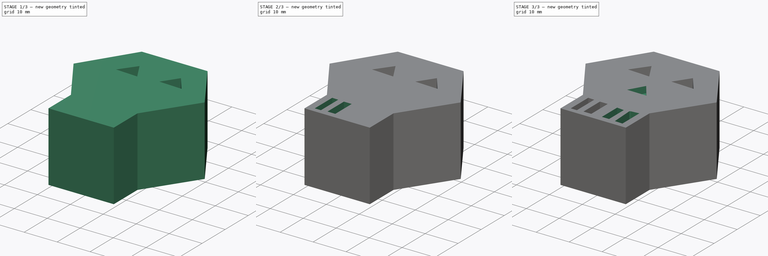
[diagram: build sequence overview — one tinted view per stage of 3, left to right]
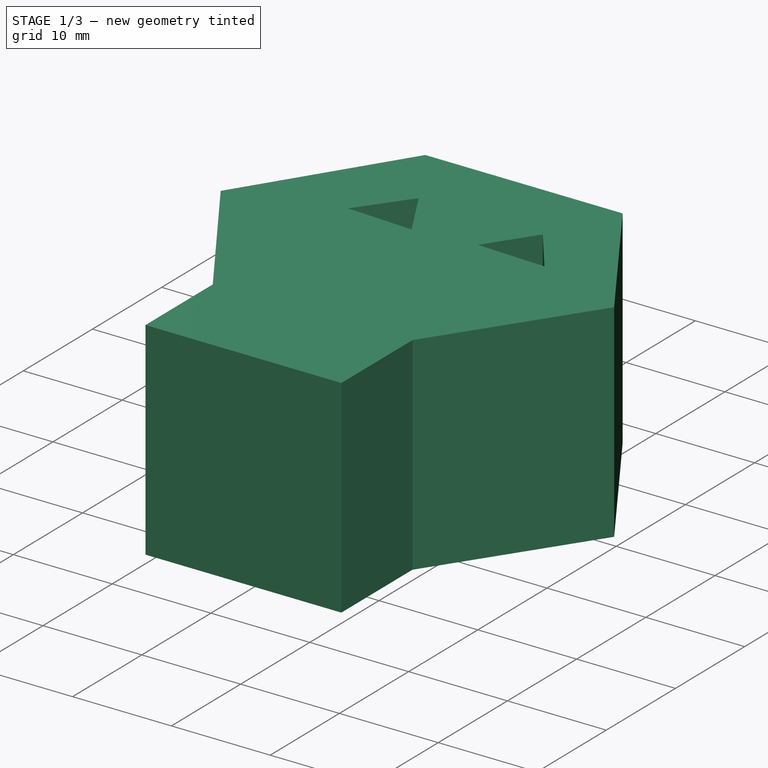
[diagram: stage 1 of 3 — iso view after this stage's code; geometry added in this stage tinted green]
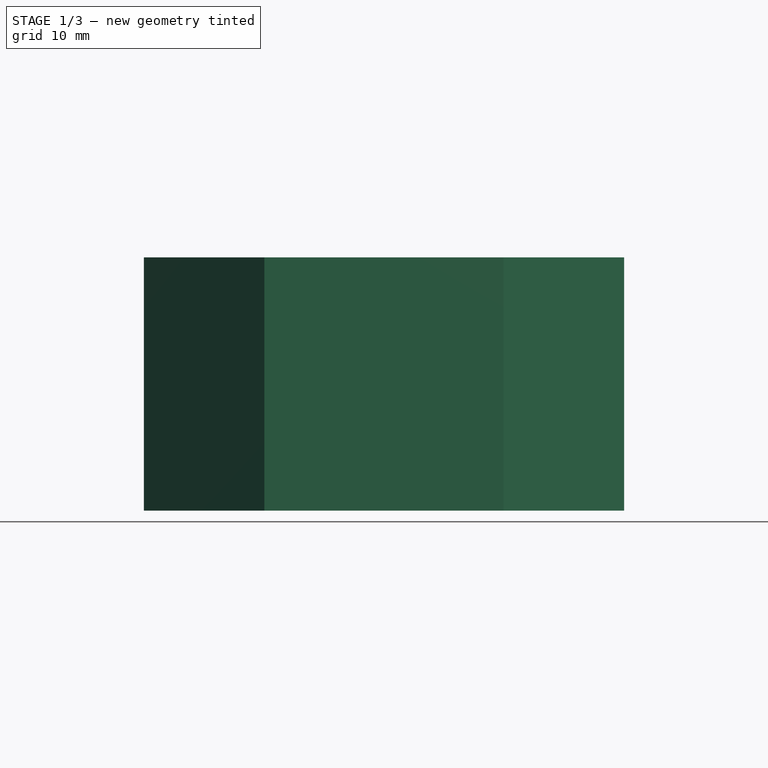
[diagram: stage 1 of 3 — front view after this stage's code; geometry added in this stage tinted green]
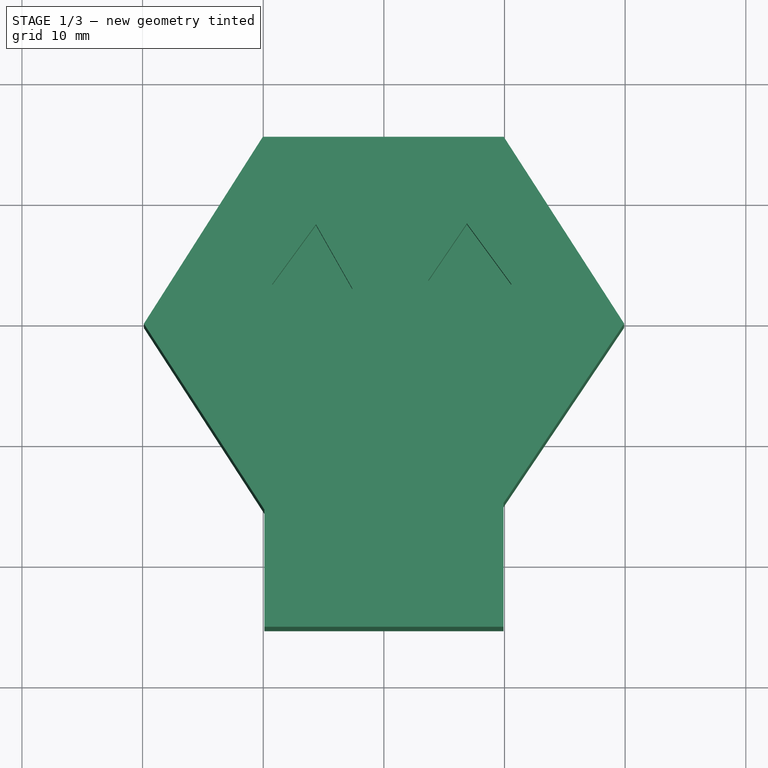
[diagram: stage 1 of 3 — top view after this stage's code; geometry added in this stage tinted green]
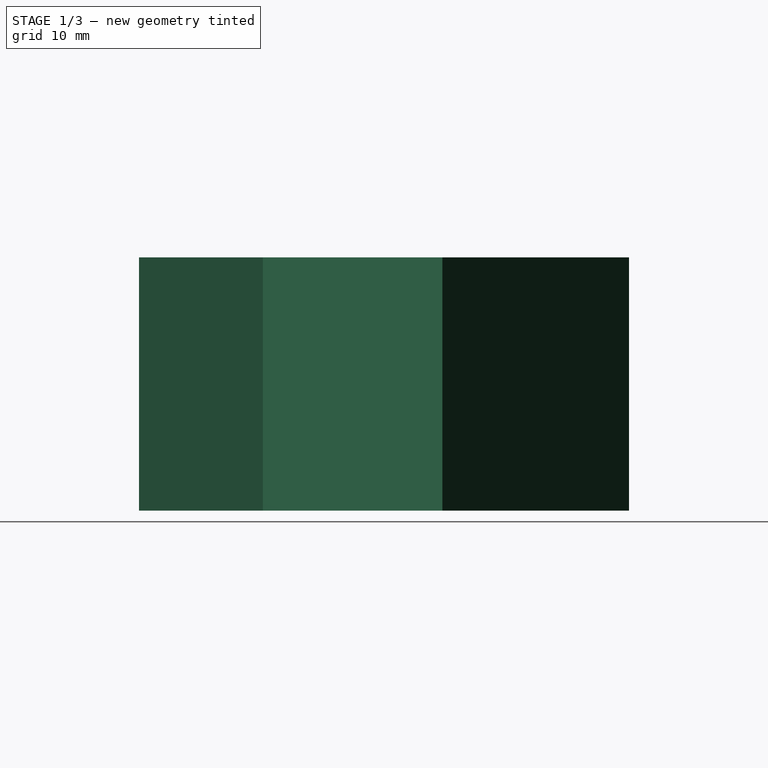
[diagram: stage 1 of 3 — right view after this stage's code; geometry added in this stage tinted green]
FCSTD DOCUMENT  (FreeCAD 0.21R33694 (Git))
Label: OJT1_T17R01.darth_vader
License: All rights reserved
LicenseURL: http://en.wikipedia.org/wiki/All_rights_reserved
objects: Sketcher::SketchObject×8, PartDesign::Pocket×7, PartDesign::Pad×1, PartDesign::Body×1
note: 25 computed .brp shape members not serialized (recipe doc carries the construction recipe); baked Part::Feature solids carry a one-line shape summary decoded from their .brp

FEATURE [Sketcher::SketchObject] Sketch
  FullyConstrained = false
  MapMode = 5
  Support = -> [XY_Plane]
  sketch-geometry (8):
    g0: LineSegment StartX=-10.0323 StartY=15.3043 StartZ=0 EndX=9.93668 EndY=15.3043 EndZ=0
    g1: LineSegment StartX=9.93668 StartY=15.3043 StartZ=0 EndX=19.9127 EndY=-0.173444 EndZ=0
    g2: LineSegment StartX=19.9127 StartY=-0.173444 StartZ=0 EndX=9.91949 EndY=-15.0522 EndZ=0
    g3: LineSegment StartX=9.91949 StartY=-15.0522 StartZ=0 EndX=9.91949 EndY=-25.3202 EndZ=0
    g4: LineSegment StartX=9.91949 StartY=-25.3202 StartZ=0 EndX=-9.90307 EndY=-25.3202 EndZ=0
    g5: LineSegment StartX=-9.90307 StartY=-25.3202 StartZ=0 EndX=-9.90307 EndY=-15.5968 EndZ=0
    g6: LineSegment StartX=-9.90307 StartY=-15.5968 StartZ=0 EndX=-19.8896 EndY=-0.189549 EndZ=0
    g7: LineSegment StartX=-19.8896 StartY=-0.189549 StartZ=0 EndX=-10.0323 EndY=15.3043 EndZ=0
  constraints (12):
    c: Horizontal(g0)
    c: Coincident(g0,g1)
    c: Coincident(g1,g2)
    c: Coincident(g2,g3)
    c: Vertical(g3)
    c: Coincident(g3,g4)
    c: Horizontal(g4)
    c: Coincident(g4,g5)
    c: Vertical(g5)
    c: Coincident(g5,g6)
    c: Coincident(g6,g7)
    c: Coincident(g7,g0)
FEATURE [PartDesign::Pad] Pad
  Direction = (0,0,1)
  Length = 21
  Length2 = 10
  Profile = -> Sketch
  ReferenceAxis = -> Sketch [N_Axis]
  Refine = true
  Type = 0
FEATURE [Sketcher::SketchObject] Sketch001
  FullyConstrained = false
  MapMode = 5
  Placement = pos=(0,0,21) rot=(0,0,1;0rad)
  Support = -> [Pad]
  sketch-geometry (3):
    g0: LineSegment StartX=-5.62805 StartY=8.04647 StartZ=0 EndX=-9.27889 EndY=3.05699 EndZ=0
    g1: LineSegment StartX=-9.27889 StartY=3.05699 StartZ=0 EndX=-2.58568 EndY=2.69191 EndZ=0
    g2: LineSegment StartX=-2.58568 StartY=2.69191 StartZ=0 EndX=-5.62805 EndY=8.04647 EndZ=0
  constraints (3):
    c: Coincident(g0,g1)
    c: Coincident(g1,g2)
    c: Coincident(g2,g0)
FEATURE [PartDesign::Pocket] Pocket
  BaseFeature = -> Pad
  Direction = (0,0,-1)
  Length = 5
  Length2 = 5
  Profile = -> Sketch001
  ReferenceAxis = -> Sketch001 [N_Axis]
  Refine = true
  Type = 0
FEATURE [Sketcher::SketchObject] Sketch002
  FullyConstrained = false
  MapMode = 5
  Placement = pos=(0,0,21) rot=(0,0,1;0rad)
  Support = -> [Pocket]
  sketch-geometry (3):
    g0: LineSegment StartX=6.8832 StartY=8.12005 StartZ=0 EndX=3.65829 EndY=3.37396 EndZ=0
    g1: LineSegment StartX=3.65829 StartY=3.37396 StartZ=0 EndX=10.5949 EndY=3.06972 EndZ=0
    g2: LineSegment StartX=10.5949 StartY=3.06972 StartZ=0 EndX=6.8832 EndY=8.12005 EndZ=0
  constraints (3):
    c: Coincident(g0,g1)
    c: Coincident(g1,g2)
    c: Coincident(g2,g0)
FEATURE [PartDesign::Pocket] Pocket001
  BaseFeature = -> Pocket
  Direction = (0,0,-1)
  Length = 5
  Length2 = 5
  Profile = -> Sketch002
  ReferenceAxis = -> Sketch002 [N_Axis]
  Refine = true
  Type = 0
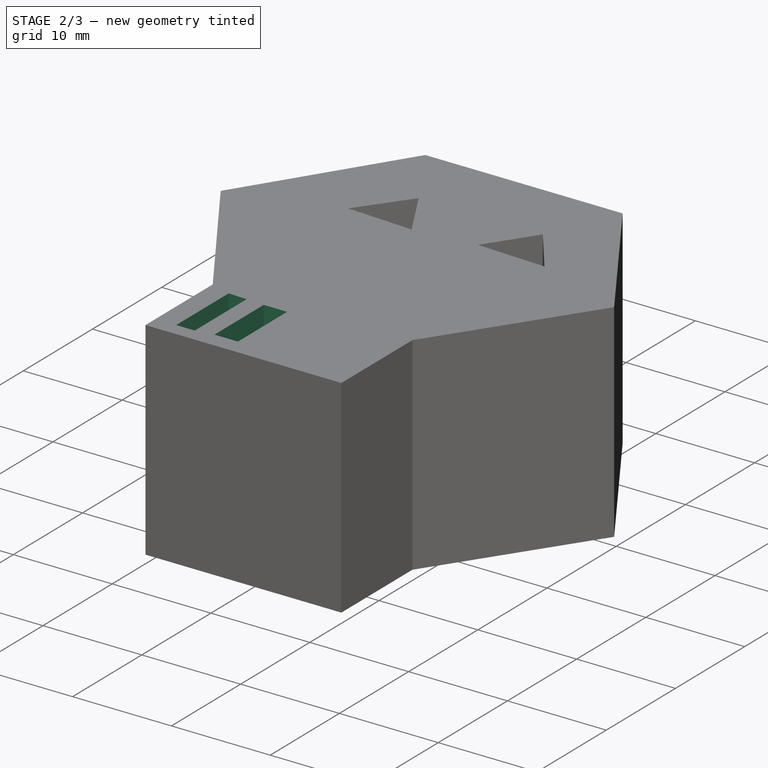
[diagram: stage 2 of 3 — iso view after this stage's code; geometry added in this stage tinted green]
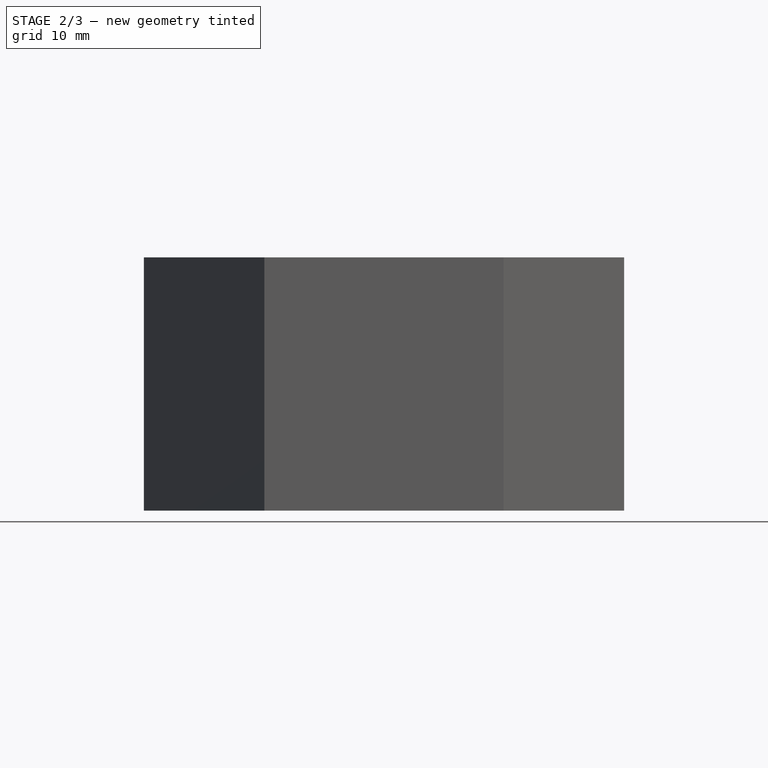
[diagram: stage 2 of 3 — front view after this stage's code; geometry added in this stage tinted green]
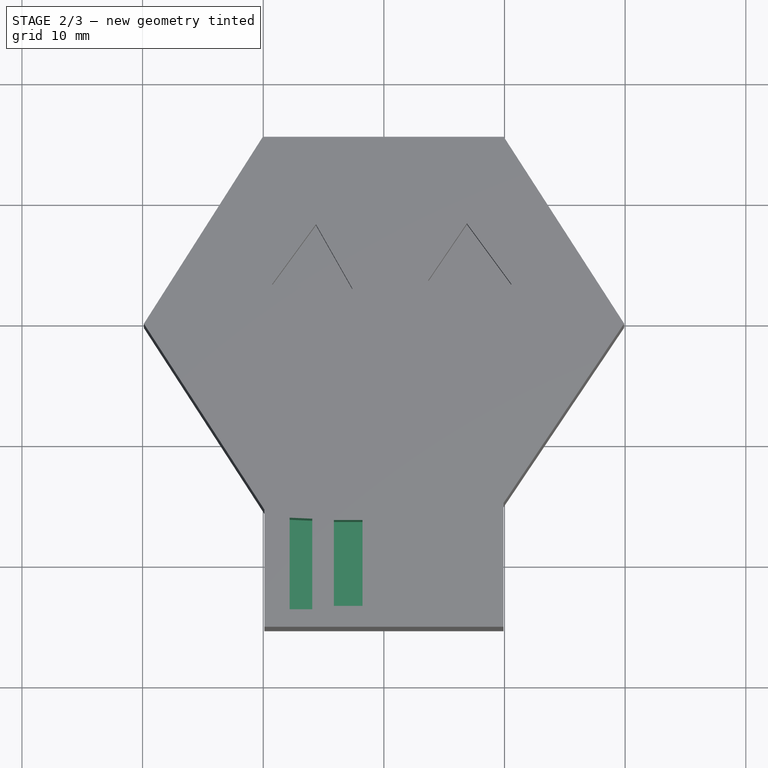
[diagram: stage 2 of 3 — top view after this stage's code; geometry added in this stage tinted green]
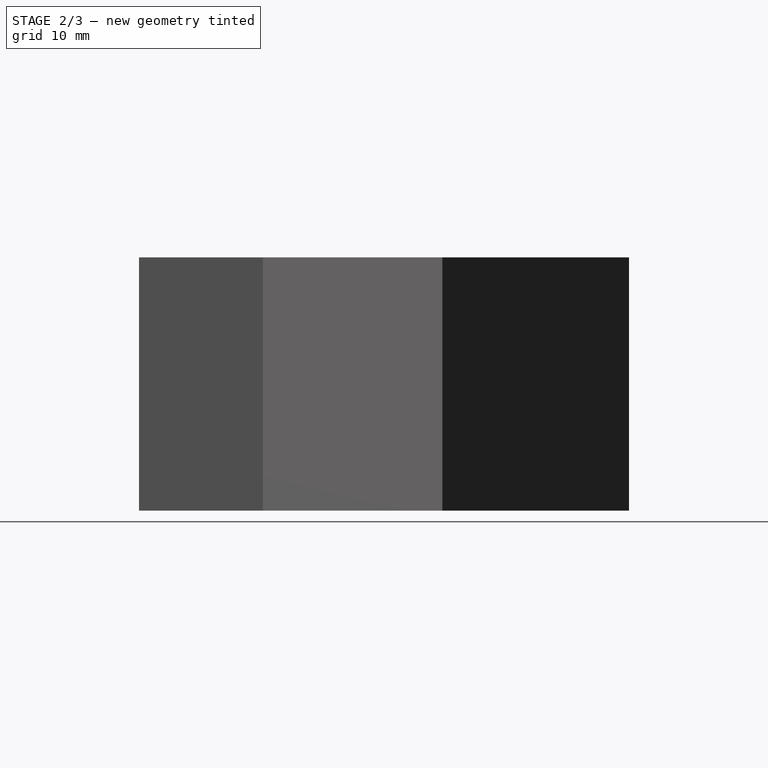
[diagram: stage 2 of 3 — right view after this stage's code; geometry added in this stage tinted green]
FEATURE [Sketcher::SketchObject] Sketch003
  FullyConstrained = false
  MapMode = 5
  Placement = pos=(0,0,21) rot=(0,0,1;0rad)
  Support = -> [Pocket001]
  sketch-geometry (4):
    g0: LineSegment StartX=-7.81432 StartY=-23.8601 StartZ=0 EndX=-5.93811 EndY=-23.8601 EndZ=0
    g1: LineSegment StartX=-5.93811 StartY=-23.8601 StartZ=0 EndX=-5.93811 EndY=-16.3553 EndZ=0
    g2: LineSegment StartX=-5.93811 StartY=-16.3553 StartZ=0 EndX=-7.81432 EndY=-16.2737 EndZ=0
    g3: LineSegment StartX=-7.81432 StartY=-16.2737 StartZ=0 EndX=-7.81432 EndY=-23.8601 EndZ=0
  constraints (7):
    c: Horizontal(g0)
    c: Coincident(g0,g1)
    c: Vertical(g1)
    c: Coincident(g1,g2)
    c: Coincident(g2,g3)
    c: Coincident(g3,g0)
    c: Vertical(g3)
FEATURE [PartDesign::Pocket] Pocket002
  BaseFeature = -> Pocket001
  Direction = (0,0,-1)
  Length = 10
  Length2 = 5
  Profile = -> Sketch003
  ReferenceAxis = -> Sketch003 [N_Axis]
  Refine = true
  Type = 0
FEATURE [Sketcher::SketchObject] Sketch004
  FullyConstrained = false
  MapMode = 5
  Placement = pos=(0,0,21) rot=(0,0,1;0rad)
  Support = -> [Pocket002]
  sketch-geometry (4):
    g0: LineSegment StartX=-4.13921 StartY=-16.4607 StartZ=0 EndX=-1.76617 EndY=-16.4607 EndZ=0
    g1: LineSegment StartX=-1.76617 StartY=-16.4607 StartZ=0 EndX=-1.76617 EndY=-23.5798 EndZ=0
    g2: LineSegment StartX=-1.76617 StartY=-23.5798 StartZ=0 EndX=-4.13921 EndY=-23.5798 EndZ=0
    g3: LineSegment StartX=-4.13921 StartY=-23.5798 StartZ=0 EndX=-4.13921 EndY=-16.4607 EndZ=0
  constraints (8):
    c: Horizontal(g0)
    c: Coincident(g0,g1)
    c: Vertical(g1)
    c: Coincident(g1,g2)
    c: Horizontal(g2)
    c: Coincident(g2,g3)
    c: Coincident(g3,g0)
    c: Vertical(g3)
FEATURE [PartDesign::Pocket] Pocket003
  BaseFeature = -> Pocket002
  Direction = (0,0,-1)
  Length = 10
  Length2 = 5
  Profile = -> Sketch004
  ReferenceAxis = -> Sketch004 [N_Axis]
  Refine = true
  Type = 0
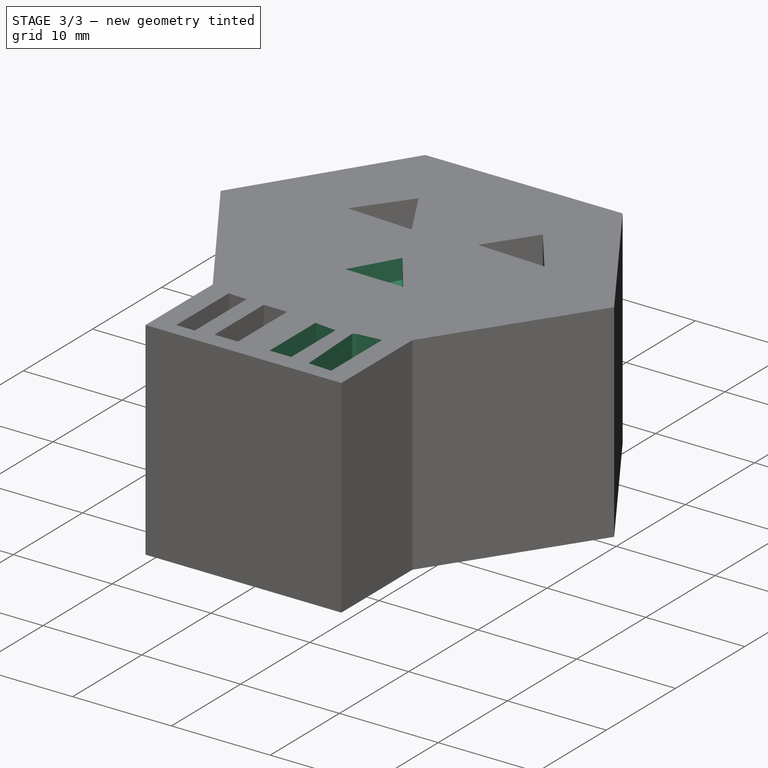
[diagram: stage 3 of 3 — iso view after this stage's code; geometry added in this stage tinted green]
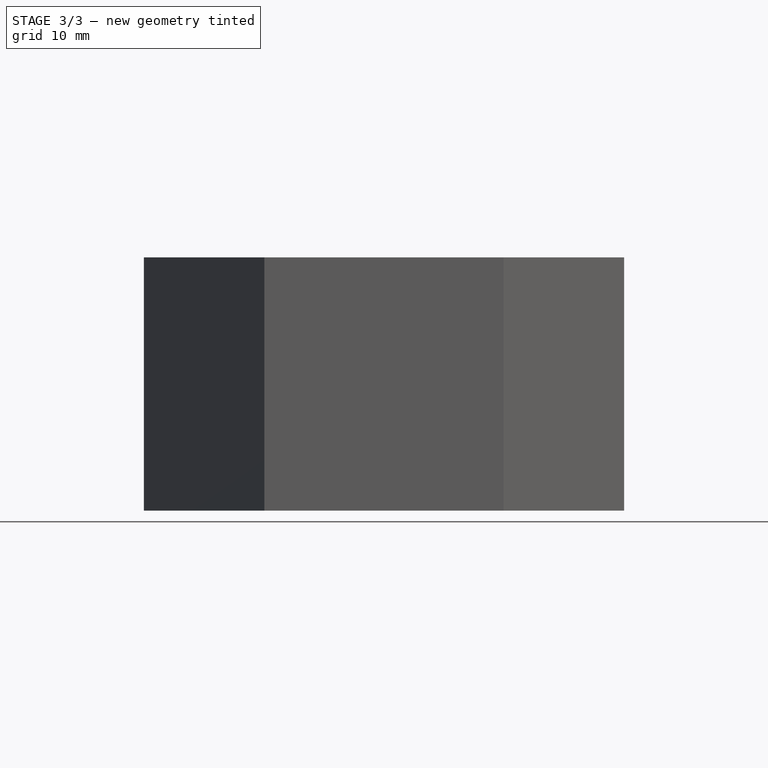
[diagram: stage 3 of 3 — front view after this stage's code; geometry added in this stage tinted green]
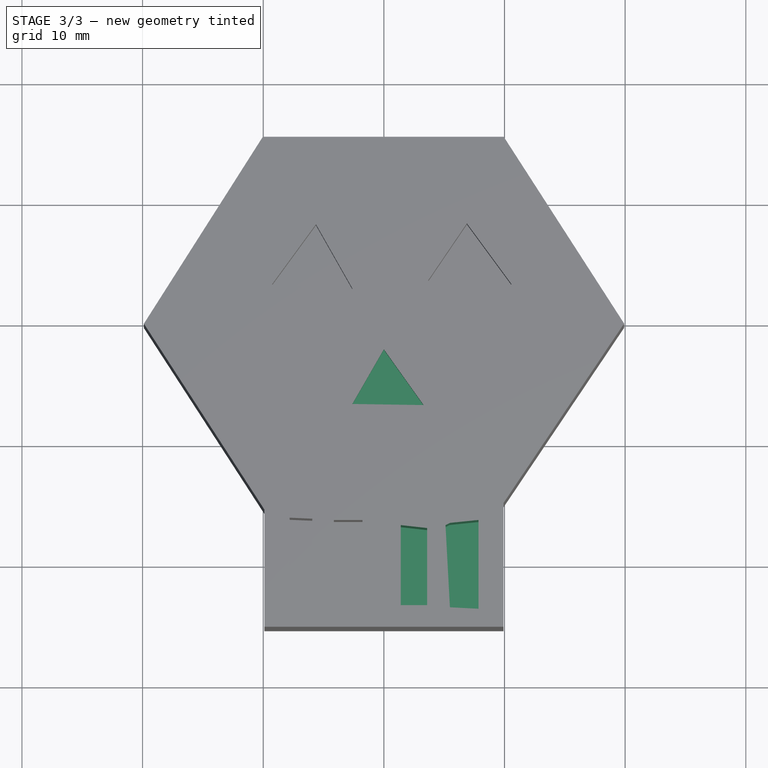
[diagram: stage 3 of 3 — top view after this stage's code; geometry added in this stage tinted green]
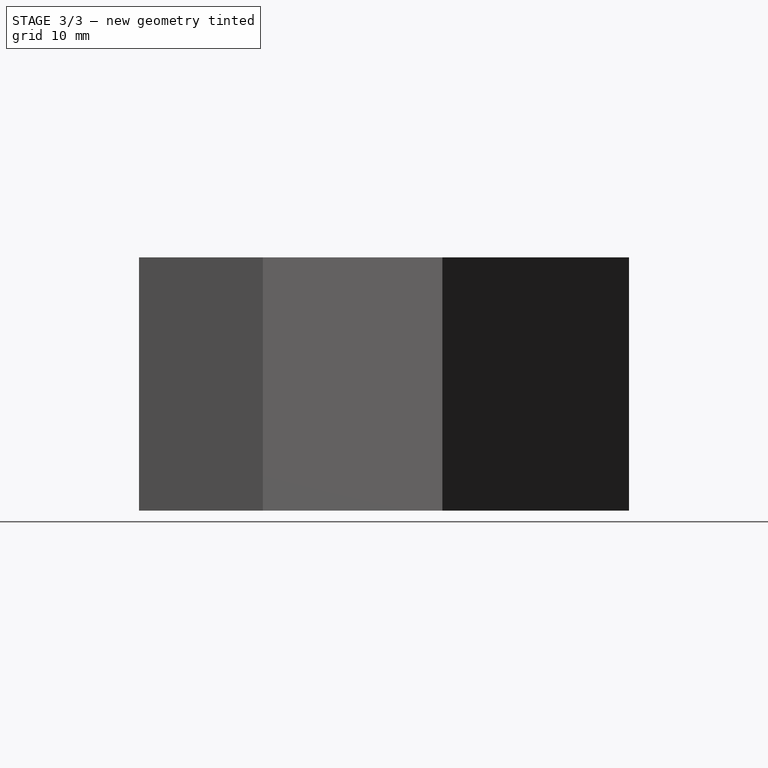
[diagram: stage 3 of 3 — right view after this stage's code; geometry added in this stage tinted green]
FEATURE [Sketcher::SketchObject] Sketch005
  FullyConstrained = false
  MapMode = 5
  Placement = pos=(0,0,21) rot=(0,0,1;0rad)
  Support = -> [Pocket003]
  sketch-geometry (4):
    g0: LineSegment StartX=1.39789 StartY=-16.8866 StartZ=0 EndX=1.39789 EndY=-23.519 EndZ=0
    g1: LineSegment StartX=1.39789 StartY=-23.519 StartZ=0 EndX=3.5884 EndY=-23.519 EndZ=0
    g2: LineSegment StartX=3.5884 StartY=-23.519 StartZ=0 EndX=3.5884 EndY=-17.13 EndZ=0
    g3: LineSegment StartX=3.5884 StartY=-17.13 StartZ=0 EndX=1.39789 EndY=-16.8866 EndZ=0
  constraints (7):
    c: Vertical(g0)
    c: Coincident(g0,g1)
    c: Horizontal(g1)
    c: Coincident(g1,g2)
    c: Vertical(g2)
    c: Coincident(g2,g3)
    c: Coincident(g3,g0)
FEATURE [PartDesign::Pocket] Pocket004
  BaseFeature = -> Pocket003
  Direction = (0,0,-1)
  Length = 10
  Length2 = 5
  Profile = -> Sketch005
  ReferenceAxis = -> Sketch005 [N_Axis]
  Refine = true
  Type = 0
FEATURE [Sketcher::SketchObject] Sketch006
  FullyConstrained = false
  MapMode = 5
  Placement = pos=(0,0,21) rot=(0,0,1;0rad)
  Support = -> [Pocket004]
  sketch-geometry (5):
    g0: LineSegment StartX=5.10958 StartY=-16.8866 StartZ=0 EndX=5.47466 EndY=-23.7015 EndZ=0
    g1: LineSegment StartX=5.47466 StartY=-23.7015 StartZ=0 EndX=7.84771 EndY=-23.8232 EndZ=0
    g2: LineSegment StartX=7.84771 StartY=-23.8232 StartZ=0 EndX=7.84771 EndY=-16.4607 EndZ=0
    g3: LineSegment StartX=7.84771 StartY=-16.4607 StartZ=0 EndX=5.47466 EndY=-16.7041 EndZ=0
    g4: LineSegment StartX=5.47466 StartY=-16.7041 StartZ=0 EndX=5.10958 EndY=-16.8866 EndZ=0
  constraints (6):
    c: Coincident(g0,g1)
    c: Coincident(g1,g2)
    c: Vertical(g2)
    c: Coincident(g2,g3)
    c: Coincident(g3,g4)
    c: Coincident(g4,g0)
FEATURE [PartDesign::Pocket] Pocket005
  BaseFeature = -> Pocket004
  Direction = (0,0,-1)
  Length = 10
  Length2 = 5
  Profile = -> Sketch006
  ReferenceAxis = -> Sketch006 [N_Axis]
  Refine = true
  Type = 0
FEATURE [Sketcher::SketchObject] Sketch007
  FullyConstrained = false
  MapMode = 5
  Placement = pos=(0,0,21) rot=(0,0,1;0rad)
  Support = -> [Pocket005]
  sketch-geometry (3):
    g0: LineSegment StartX=0 StartY=-2.31289 StartZ=0 EndX=-2.61241 EndY=-6.84636 EndZ=0
    g1: LineSegment StartX=-2.61241 StartY=-6.84636 StartZ=0 EndX=3.29679 EndY=-6.93792 EndZ=0
    g2: LineSegment StartX=3.29679 StartY=-6.93792 StartZ=0 EndX=0 EndY=-2.31289 EndZ=0
  constraints (4):
    c: PointOnObject(g0,g-2)
    c: Coincident(g0,g1)
    c: Coincident(g1,g2)
    c: Coincident(g2,g0)
FEATURE [PartDesign::Pocket] Pocket006
  BaseFeature = -> Pocket005
  Direction = (0,0,-1)
  Length = 2
  Length2 = 5
  Profile = -> Sketch007
  ReferenceAxis = -> Sketch007 [N_Axis]
  Refine = true
  Type = 0
FEATURE [PartDesign::Body] Body
  Group = -> [Sketch,Pad,Sketch001,Pocket,Sketch002,Pocket001,Sketch003,Pocket002,Sketch004,Pocket003,Sketch005,Pocket004,Sketch006,Pocket005,Sketch007,Pocket006]
  Origin = -> Origin
  Tip = -> Pocket006
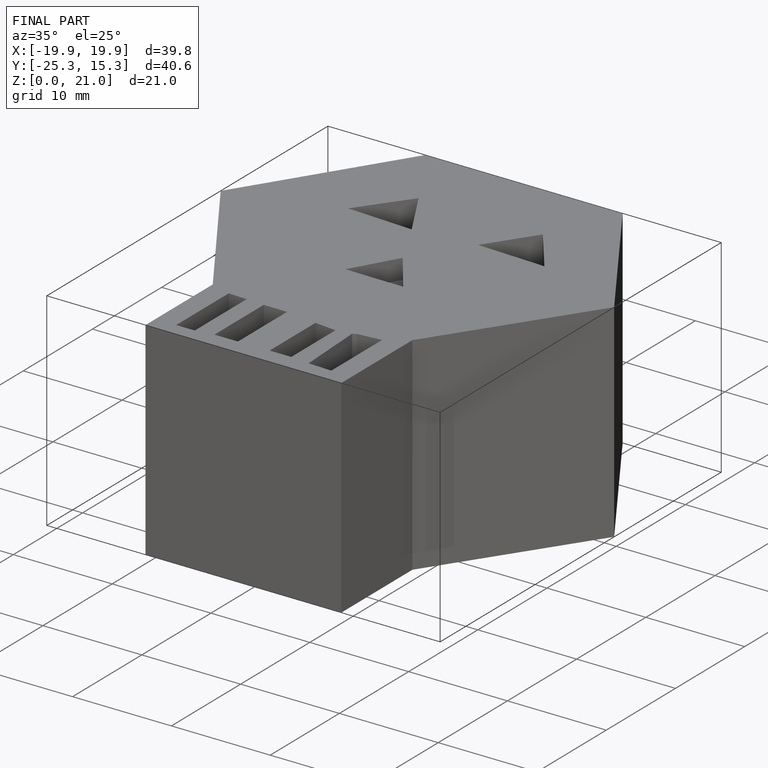
[diagram: finished part — iso view with bounding-box wireframe]
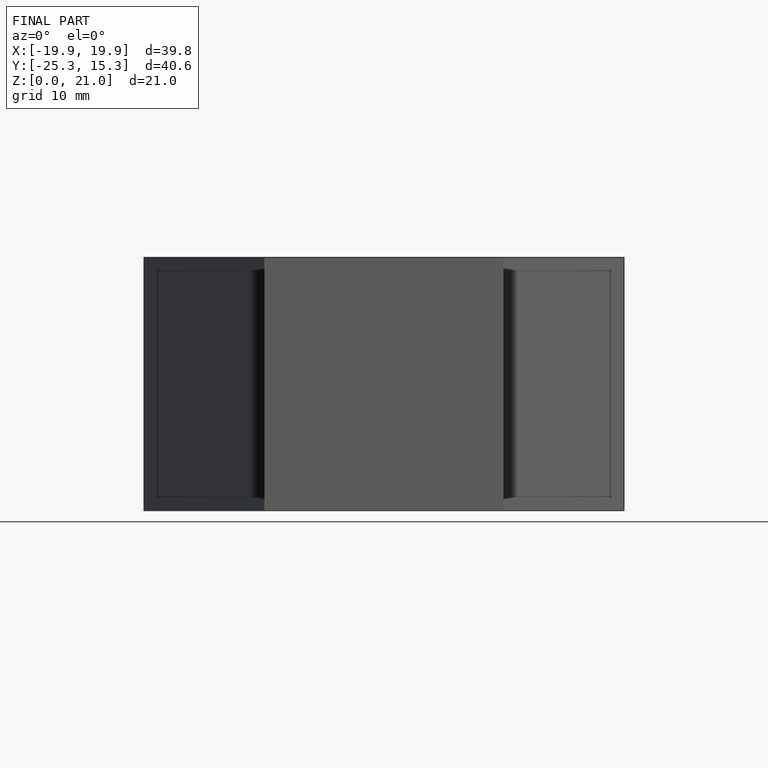
[diagram: finished part — front view with bounding-box wireframe]
